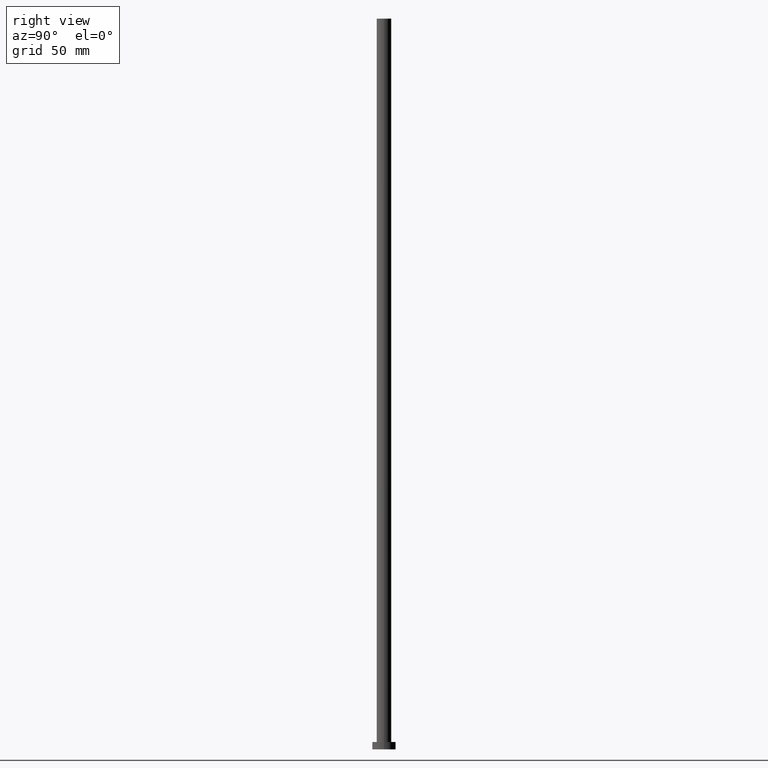
[diagram: clean part render]
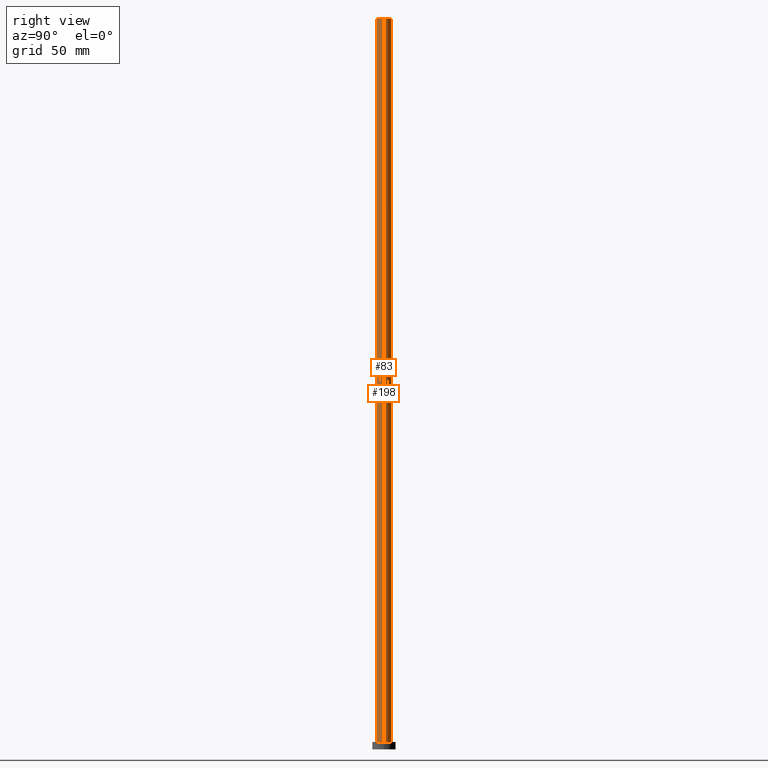
[diagram: same view with one multi-face feature highlighted, each face labeled with its STEP entity id]
A machine part, right view. The highlighted faces form ONE feature: a constant-radius fillet chain: 2 tangent blend faces with common blend radius 5 mm. The faces share edges in the B-rep.
Their STEP definitions:
[1] entity #83 (Cylinder):
#2 = EDGE_CURVE ( 'NONE', #209, #253, #94, .T. ) ;
#7 = LINE ( 'NONE', #175, #214 ) ;
#10 = CARTESIAN_POINT ( 'NONE',  ( 0.000000000000000000, 0.000000000000000000, 500.0000000000000000 ) ) ;
#12 = EDGE_CURVE ( 'NONE', #209, #73, #177, .T. ) ;
#13 = DIRECTION ( 'NONE',  ( 0.000000000000000000, 0.000000000000000000, 1.000000000000000000 ) ) ;
#15 = DIRECTION ( 'NONE',  ( 1.000000000000000000, 0.000000000000000000, 0.000000000000000000 ) ) ;
#20 = ORIENTED_EDGE ( 'NONE', *, *, #25, .F. ) ;
#25 = EDGE_CURVE ( 'NONE', #73, #243, #7, .T. ) ;
#30 = DIRECTION ( 'NONE',  ( -0.000000000000000000, -0.000000000000000000, -1.000000000000000000 ) ) ;
#35 = CYLINDRICAL_SURFACE ( 'NONE', #250, 5.000000000000000000 ) ;
#47 = DIRECTION ( 'NONE',  ( 0.000000000000000000, 0.000000000000000000, 1.000000000000000000 ) ) ;
#53 = EDGE_CURVE ( 'NONE', #253, #243, #151, .T. ) ;
#54 = DIRECTION ( 'NONE',  ( 1.000000000000000000, 0.000000000000000000, 0.000000000000000000 ) ) ;
#63 = AXIS2_PLACEMENT_3D ( 'NONE', #75, #47, #54 ) ;
#73 = VERTEX_POINT ( 'NONE', #194 ) ;
#75 = CARTESIAN_POINT ( 'NONE',  ( 0.000000000000000000, 0.000000000000000000, 500.0000000000000000 ) ) ;
#76 = DIRECTION ( 'NONE',  ( -0.000000000000000000, -0.000000000000000000, -1.000000000000000000 ) ) ;
#77 = VECTOR ( 'NONE', #30, 1000.000000000000000 ) ;
#80 = DIRECTION ( 'NONE',  ( -0.000000000000000000, -0.000000000000000000, -1.000000000000000000 ) ) ;
#83 = ADVANCED_FACE ( 'NONE', ( #233 ), #35, .T. ) ;
#84 = CARTESIAN_POINT ( 'NONE',  ( -5.000000000000000000, 0.000000000000000000, 5.000000000000000000 ) ) ;
#85 = CARTESIAN_POINT ( 'NONE',  ( 5.000000000000000000, 6.123233995736766282E-16, 5.000000000000000000 ) ) ;
#94 = LINE ( 'NONE', #138, #77 ) ;
#115 = ORIENTED_EDGE ( 'NONE', *, *, #53, .T. ) ;
#136 = AXIS2_PLACEMENT_3D ( 'NONE', #235, #13, #15 ) ;
#138 = CARTESIAN_POINT ( 'NONE',  ( -5.000000000000000000, 0.000000000000000000, 500.0000000000000000 ) ) ;
#147 = CARTESIAN_POINT ( 'NONE',  ( -5.000000000000000000, 0.000000000000000000, 500.0000000000000000 ) ) ;
#151 = CIRCLE ( 'NONE', #136, 5.000000000000000000 ) ;
#175 = CARTESIAN_POINT ( 'NONE',  ( 5.000000000000000000, 6.123233995736766282E-16, 500.0000000000000000 ) ) ;
#177 = CIRCLE ( 'NONE', #63, 5.000000000000000000 ) ;
#189 = ORIENTED_EDGE ( 'NONE', *, *, #2, .T. ) ;
#193 = DIRECTION ( 'NONE',  ( -1.000000000000000000, 0.000000000000000000, 0.000000000000000000 ) ) ;
#194 = CARTESIAN_POINT ( 'NONE',  ( 5.000000000000000000, 6.123233995736766282E-16, 500.0000000000000000 ) ) ;
#202 = EDGE_LOOP ( 'NONE', ( #20, #226, #189, #115 ) ) ;
#209 = VERTEX_POINT ( 'NONE', #147 ) ;
#214 = VECTOR ( 'NONE', #76, 1000.000000000000000 ) ;
#226 = ORIENTED_EDGE ( 'NONE', *, *, #12, .F. ) ;
#233 = FACE_OUTER_BOUND ( 'NONE', #202, .T. ) ;
#235 = CARTESIAN_POINT ( 'NONE',  ( 0.000000000000000000, 0.000000000000000000, 5.000000000000000000 ) ) ;
#243 = VERTEX_POINT ( 'NONE', #85 ) ;
#250 = AXIS2_PLACEMENT_3D ( 'NONE', #10, #80, #193 ) ;
#253 = VERTEX_POINT ( 'NONE', #84 ) ;
[2] entity #198 (Cylinder):
#2 = EDGE_CURVE ( 'NONE', #209, #253, #94, .T. ) ;
#4 = CIRCLE ( 'NONE', #146, 5.000000000000000000 ) ;
#7 = LINE ( 'NONE', #175, #214 ) ;
#25 = EDGE_CURVE ( 'NONE', #73, #243, #7, .T. ) ;
#30 = DIRECTION ( 'NONE',  ( -0.000000000000000000, -0.000000000000000000, -1.000000000000000000 ) ) ;
#31 = CIRCLE ( 'NONE', #43, 5.000000000000000000 ) ;
#38 = CYLINDRICAL_SURFACE ( 'NONE', #122, 5.000000000000000000 ) ;
#42 = DIRECTION ( 'NONE',  ( -1.000000000000000000, 0.000000000000000000, 0.000000000000000000 ) ) ;
#43 = AXIS2_PLACEMENT_3D ( 'NONE', #199, #105, #61 ) ;
#61 = DIRECTION ( 'NONE',  ( 1.000000000000000000, 0.000000000000000000, 0.000000000000000000 ) ) ;
#70 = ORIENTED_EDGE ( 'NONE', *, *, #25, .T. ) ;
#73 = VERTEX_POINT ( 'NONE', #194 ) ;
#76 = DIRECTION ( 'NONE',  ( -0.000000000000000000, -0.000000000000000000, -1.000000000000000000 ) ) ;
#77 = VECTOR ( 'NONE', #30, 1000.000000000000000 ) ;
#84 = CARTESIAN_POINT ( 'NONE',  ( -5.000000000000000000, 0.000000000000000000, 5.000000000000000000 ) ) ;
#85 = CARTESIAN_POINT ( 'NONE',  ( 5.000000000000000000, 6.123233995736766282E-16, 5.000000000000000000 ) ) ;
#94 = LINE ( 'NONE', #138, #77 ) ;
#99 = CARTESIAN_POINT ( 'NONE',  ( 0.000000000000000000, 0.000000000000000000, 500.0000000000000000 ) ) ;
#105 = DIRECTION ( 'NONE',  ( 0.000000000000000000, 0.000000000000000000, 1.000000000000000000 ) ) ;
#106 = ORIENTED_EDGE ( 'NONE', *, *, #2, .F. ) ;
#122 = AXIS2_PLACEMENT_3D ( 'NONE', #206, #161, #42 ) ;
#138 = CARTESIAN_POINT ( 'NONE',  ( -5.000000000000000000, 0.000000000000000000, 500.0000000000000000 ) ) ;
#145 = DIRECTION ( 'NONE',  ( 0.000000000000000000, 0.000000000000000000, 1.000000000000000000 ) ) ;
#146 = AXIS2_PLACEMENT_3D ( 'NONE', #99, #145, #217 ) ;
#147 = CARTESIAN_POINT ( 'NONE',  ( -5.000000000000000000, 0.000000000000000000, 500.0000000000000000 ) ) ;
#150 = EDGE_CURVE ( 'NONE', #73, #209, #4, .T. ) ;
#161 = DIRECTION ( 'NONE',  ( -0.000000000000000000, -0.000000000000000000, -1.000000000000000000 ) ) ;
#174 = ORIENTED_EDGE ( 'NONE', *, *, #150, .F. ) ;
#175 = CARTESIAN_POINT ( 'NONE',  ( 5.000000000000000000, 6.123233995736766282E-16, 500.0000000000000000 ) ) ;
#183 = EDGE_CURVE ( 'NONE', #243, #253, #31, .T. ) ;
#194 = CARTESIAN_POINT ( 'NONE',  ( 5.000000000000000000, 6.123233995736766282E-16, 500.0000000000000000 ) ) ;
#198 = ADVANCED_FACE ( 'NONE', ( #239 ), #38, .T. ) ;
#199 = CARTESIAN_POINT ( 'NONE',  ( 0.000000000000000000, 0.000000000000000000, 5.000000000000000000 ) ) ;
#206 = CARTESIAN_POINT ( 'NONE',  ( 0.000000000000000000, 0.000000000000000000, 500.0000000000000000 ) ) ;
#209 = VERTEX_POINT ( 'NONE', #147 ) ;
#214 = VECTOR ( 'NONE', #76, 1000.000000000000000 ) ;
#217 = DIRECTION ( 'NONE',  ( 1.000000000000000000, 0.000000000000000000, 0.000000000000000000 ) ) ;
#221 = ORIENTED_EDGE ( 'NONE', *, *, #183, .T. ) ;
#238 = EDGE_LOOP ( 'NONE', ( #174, #70, #221, #106 ) ) ;
#239 = FACE_OUTER_BOUND ( 'NONE', #238, .T. ) ;
#243 = VERTEX_POINT ( 'NONE', #85 ) ;
#253 = VERTEX_POINT ( 'NONE', #84 ) ;